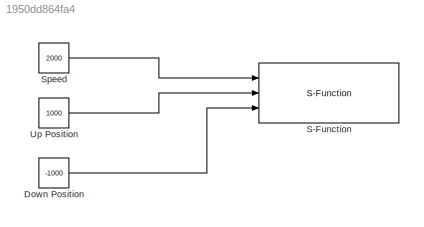
MODEL slx_1950dd864fa4
KIND model
BLOCK [Constant] Down Position
  Value = -1000
BLOCK [S-Function] S-Function
  EnableBusSupport = off
  FunctionName = stepper_tester
  Ports = [3]
BLOCK [Constant] Speed
  Value = 2000
BLOCK [Constant] Up Position
  Value = 1000
LINE Down Position:1 -> S-Function:3
LINE Speed:1 -> S-Function:1
LINE Up Position:1 -> S-Function:2
